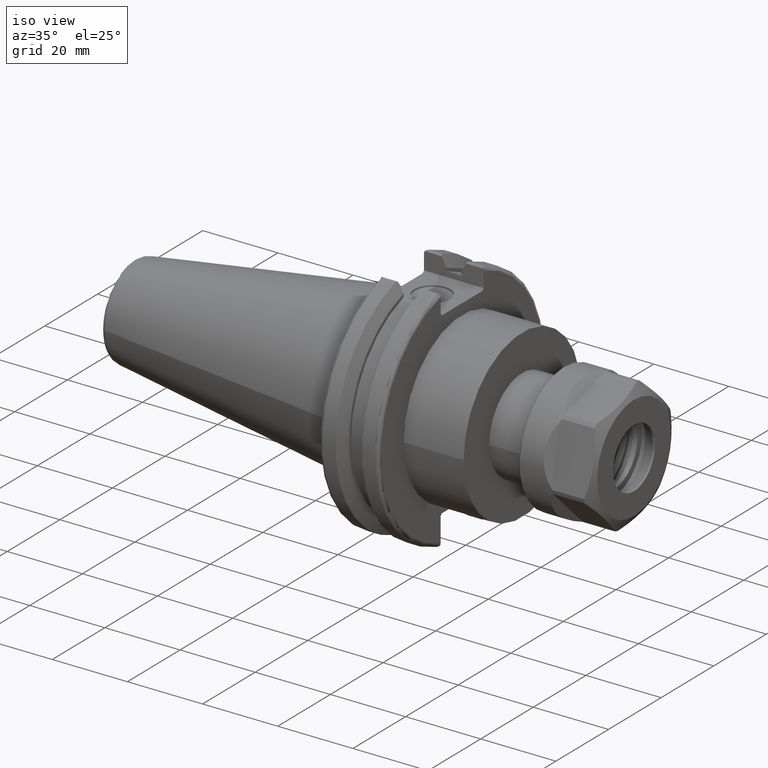
[diagram: clean part render]
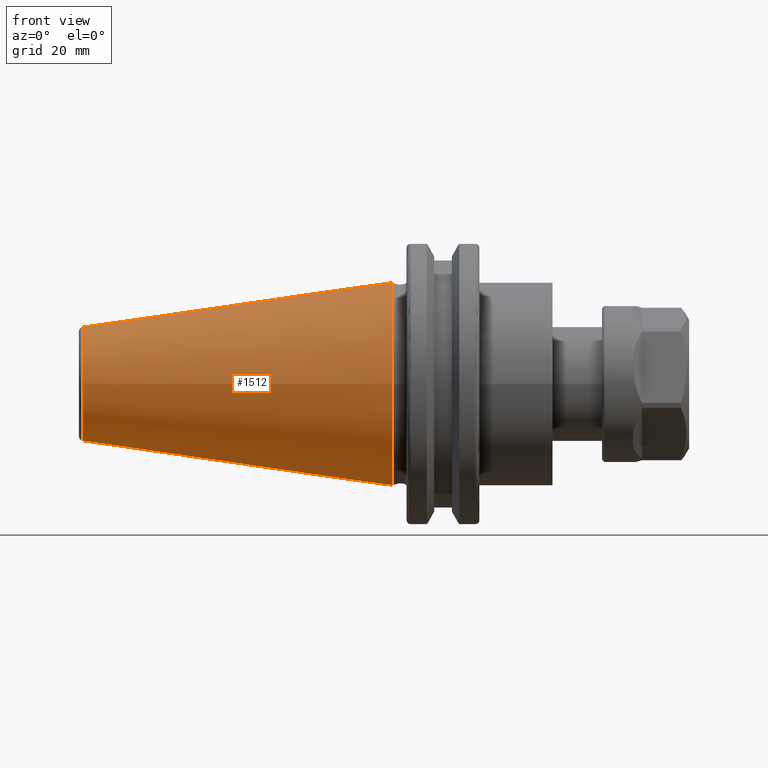
[diagram: tour spotlight — one face highlighted and labeled with its STEP entity id]
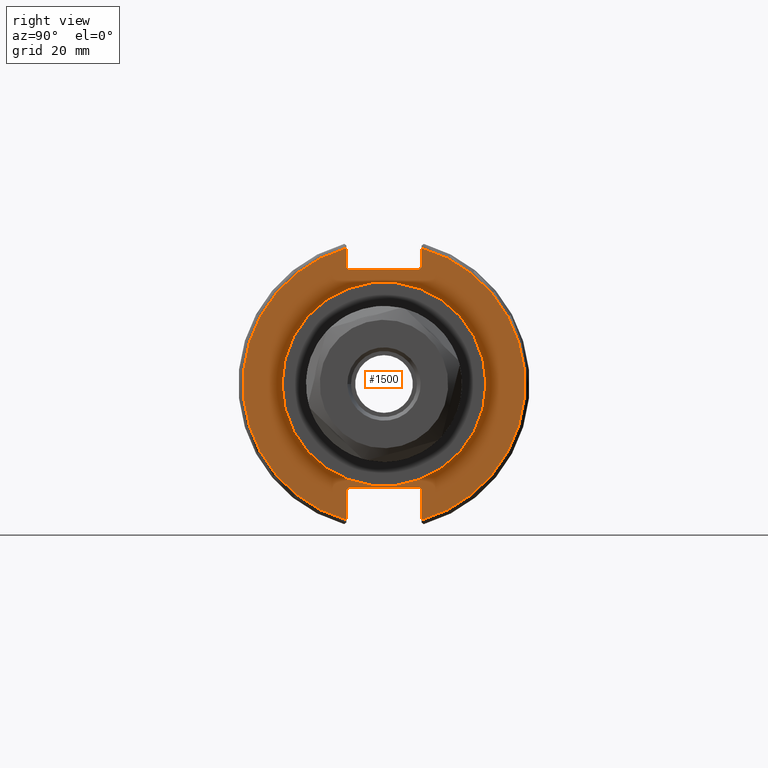
[diagram: tour spotlight — one face highlighted and labeled with its STEP entity id]
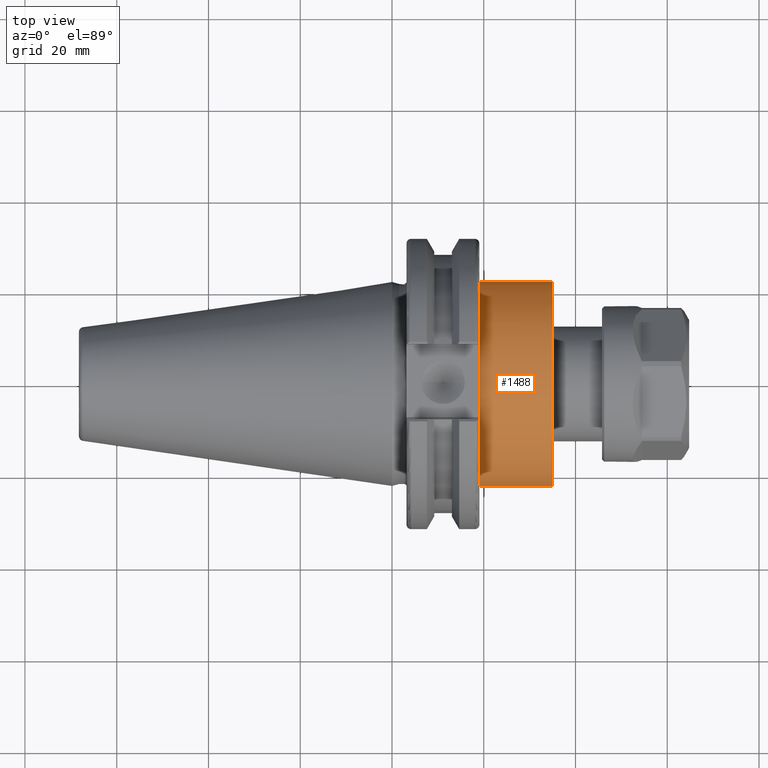
[diagram: tour spotlight — one face highlighted and labeled with its STEP entity id]
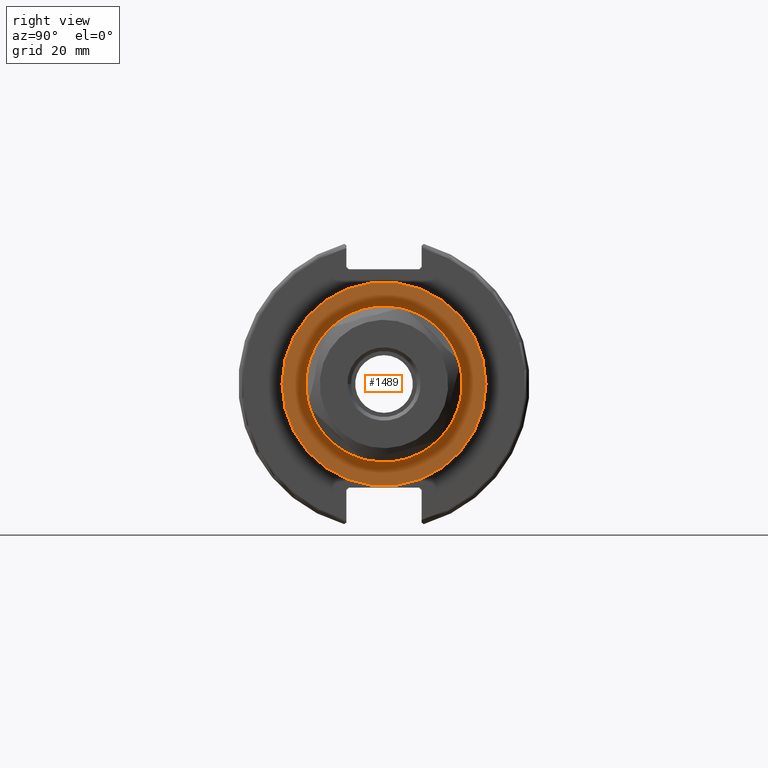
[diagram: tour spotlight — one face highlighted and labeled with its STEP entity id]
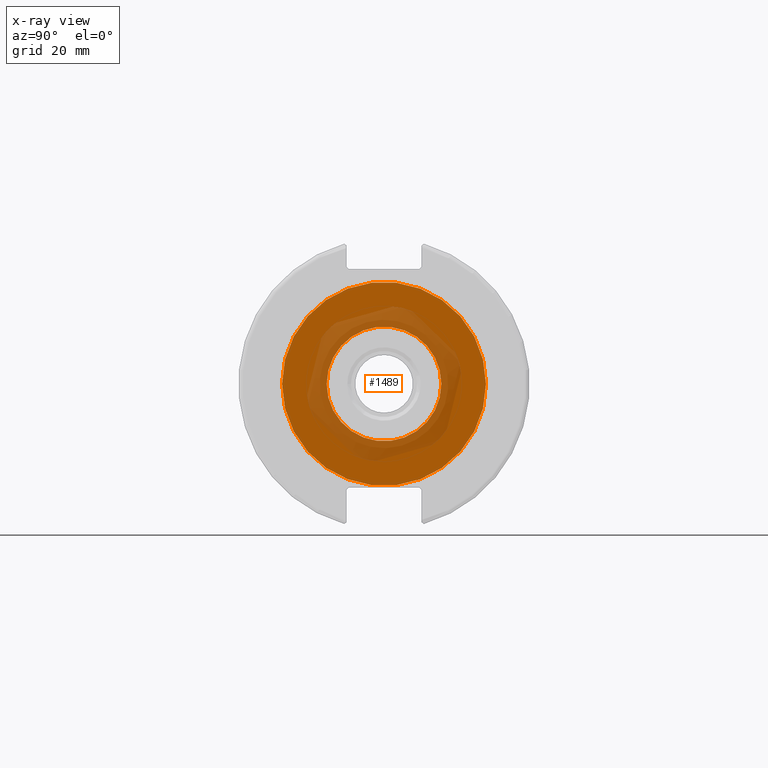
[diagram: x-ray of the same camera — body ghosted, this tour face saturated]
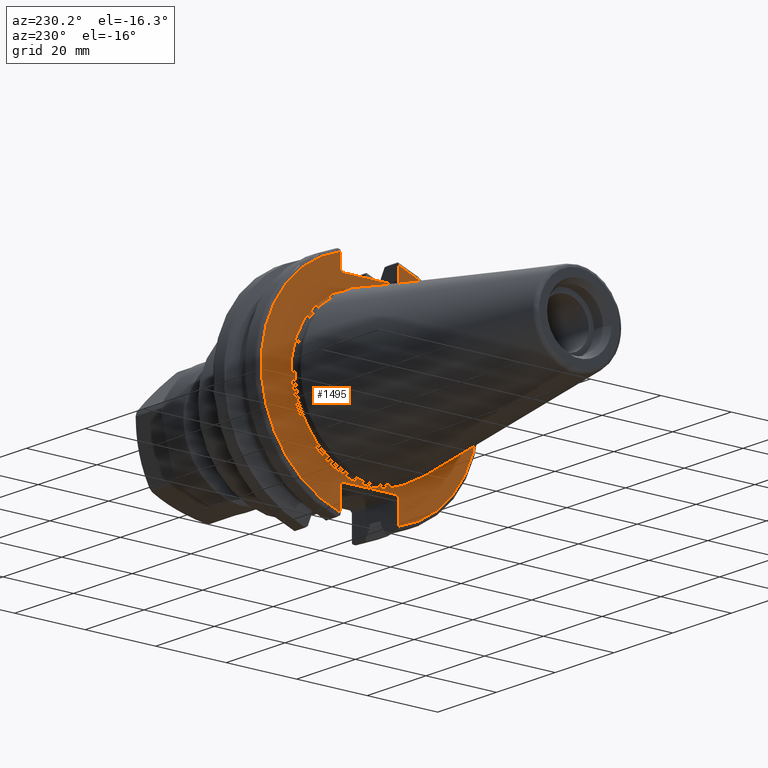
[diagram: tour spotlight — one face highlighted and labeled with its STEP entity id]
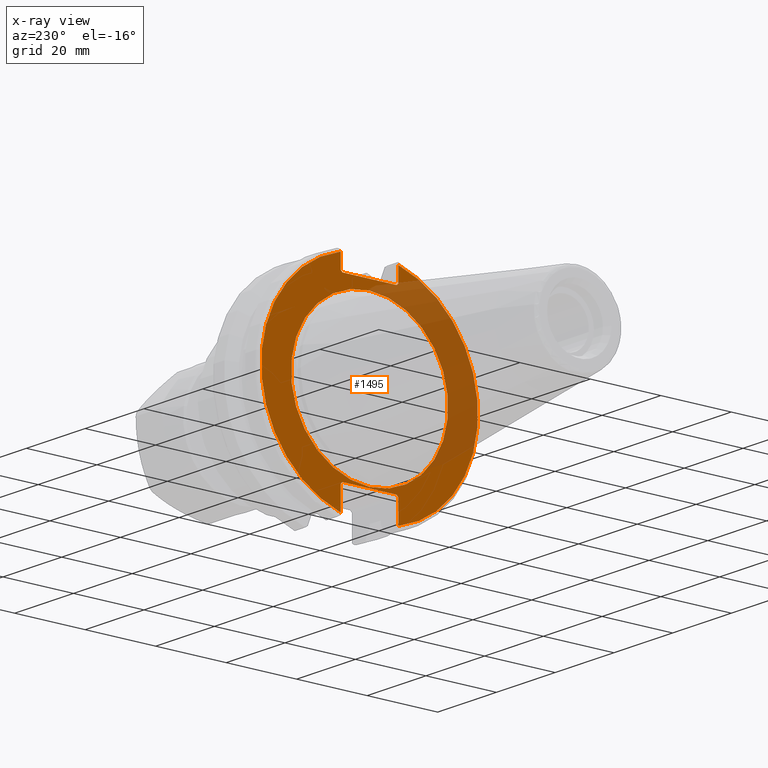
[diagram: x-ray of the same camera — body ghosted, this tour face saturated]
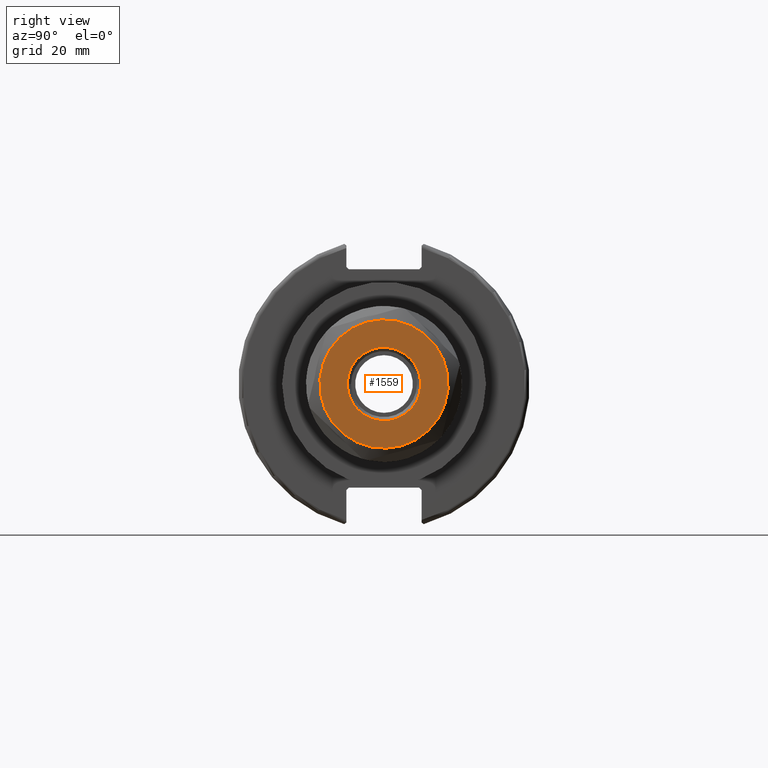
[diagram: tour spotlight — one face highlighted and labeled with its STEP entity id]
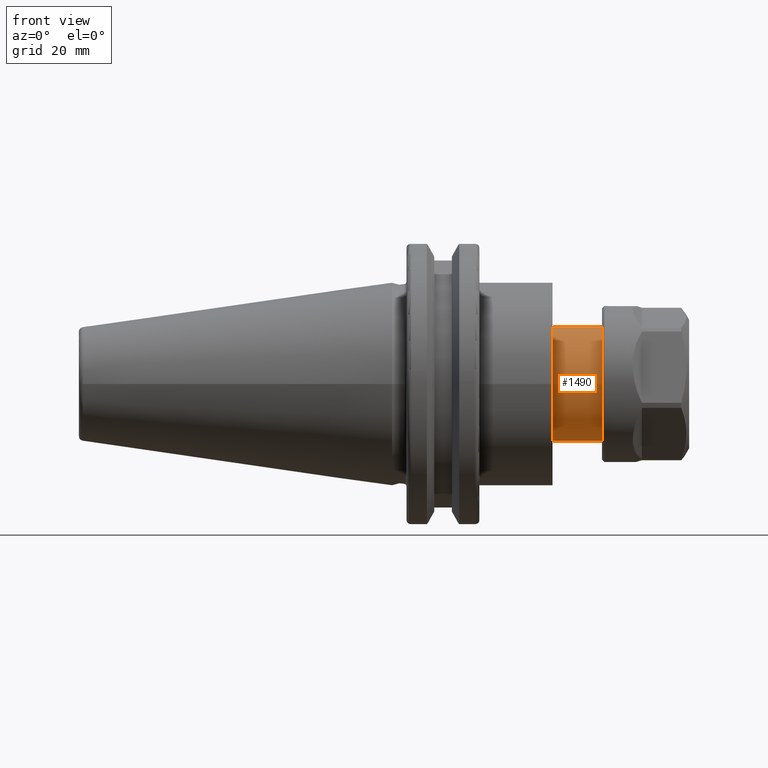
[diagram: tour spotlight — one face highlighted and labeled with its STEP entity id]
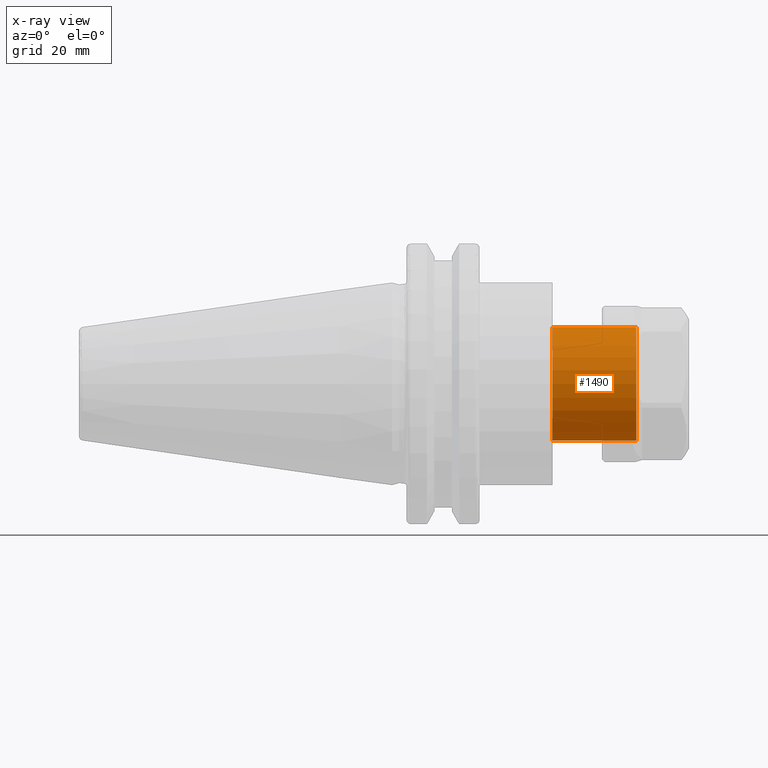
[diagram: x-ray of the same camera — body ghosted, this tour face saturated]
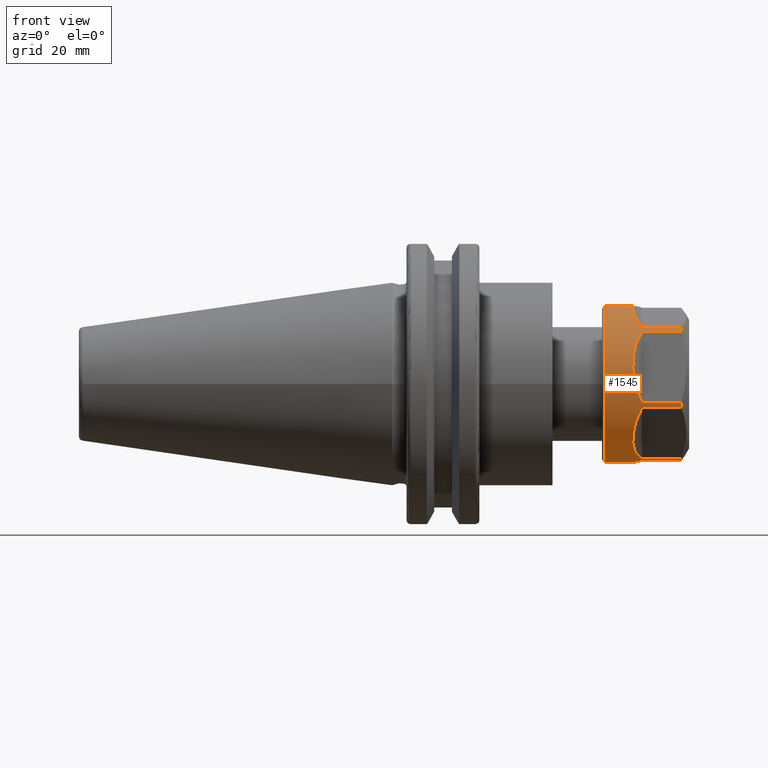
[diagram: tour spotlight — one face highlighted and labeled with its STEP entity id]
A machine part: a face-by-face anatomy tour. The part has 90 B-rep faces; the first image is the clean iso view, then the 8 largest visible faces are spotlighted one at a time (largest first), each with its STEP entity span.

Face 1 — front view, entity #1512. In plain terms, the highlighted conical surface has half-angle 8.297 deg.
Definition (entity closure, byte-faithful):
#180=CONICAL_SURFACE('',#1709,17.2484375,0.144812498238939);
#220=FACE_OUTER_BOUND('',#316,.T.);
#316=EDGE_LOOP('',(#1187,#1188,#1189,#1190,#1191));
#437=LINE('',#2618,#536);
#536=VECTOR('',#2004,17.2484375);
#611=CIRCLE('',#1703,12.3966635780937);
#612=CIRCLE('',#1704,12.3966635780937);
#616=CIRCLE('',#1710,22.225);
#738=VERTEX_POINT('',#2605);
#739=VERTEX_POINT('',#2606);
#742=VERTEX_POINT('',#2616);
#908=EDGE_CURVE('',#738,#739,#611,.T.);
#909=EDGE_CURVE('',#739,#738,#612,.T.);
#913=EDGE_CURVE('',#742,#742,#616,.T.);
#914=EDGE_CURVE('',#742,#739,#437,.T.);
#1187=ORIENTED_EDGE('',*,*,#913,.F.);
#1188=ORIENTED_EDGE('',*,*,#914,.T.);
#1189=ORIENTED_EDGE('',*,*,#908,.F.);
#1190=ORIENTED_EDGE('',*,*,#909,.F.);
#1191=ORIENTED_EDGE('',*,*,#914,.F.);
#1512=ADVANCED_FACE('',(#220),#180,.T.);
#1703=AXIS2_PLACEMENT_3D('',#2607,#1988,#1989);
#1704=AXIS2_PLACEMENT_3D('',#2608,#1990,#1991);
#1709=AXIS2_PLACEMENT_3D('',#2615,#2000,#2001);
#1710=AXIS2_PLACEMENT_3D('',#2617,#2002,#2003);
#1988=DIRECTION('center_axis',(-1.,0.,0.));
#1989=DIRECTION('ref_axis',(0.,-1.,3.06161699786838E-17));
#1990=DIRECTION('center_axis',(-1.,0.,0.));
#1991=DIRECTION('ref_axis',(0.,-1.,3.06161699786838E-17));
#2000=DIRECTION('center_axis',(1.,0.,0.));
#2001=DIRECTION('ref_axis',(0.,1.,0.));
#2002=DIRECTION('center_axis',(1.,0.,0.));
#2003=DIRECTION('ref_axis',(0.,0.,-1.));
#2004=DIRECTION('',(-0.989532981063282,0.144306893071729,1.76724974695192E-17));
#2605=CARTESIAN_POINT('',(-67.3943068930717,-1.5181534371019E-15,12.3966635780937));
#2606=CARTESIAN_POINT('',(-67.3943068930718,-12.3966635780937,-1.5181534371019E-15));
#2607=CARTESIAN_POINT('Origin',(-67.3943068930717,0.,-1.89769179637738E-15));
#2608=CARTESIAN_POINT('Origin',(-67.3943068930717,0.,-1.89769179637738E-15));
#2615=CARTESIAN_POINT('Origin',(-34.125,0.,0.));
#2616=CARTESIAN_POINT('',(0.,-22.225,-2.72177751110499E-15));
#2617=CARTESIAN_POINT('Origin',(0.,0.,0.));
#2618=CARTESIAN_POINT('',(-34.125,-17.2484375,-2.11232437746682E-15));

Face 2 — right view, entity #1500. In plain terms, the highlighted planar face has unit normal (1, 0, 0).
Definition (entity closure, byte-faithful):
#118=FACE_BOUND('',#303,.T.);
#135=PLANE('',#1687);
#208=FACE_OUTER_BOUND('',#302,.T.);
#302=EDGE_LOOP('',(#1109,#1110,#1111,#1112,#1113,#1114,#1115,#1116,#1117,
#1118,#1119,#1120));
#303=EDGE_LOOP('',(#1121));
#407=LINE('',#2407,#506);
#413=LINE('',#2433,#512);
#414=LINE('',#2435,#513);
#415=LINE('',#2437,#514);
#416=LINE('',#2439,#515);
#417=LINE('',#2441,#516);
#418=LINE('',#2445,#517);
#419=LINE('',#2447,#518);
#420=LINE('',#2449,#519);
#421=LINE('',#2450,#520);
#506=VECTOR('',#1926,10.);
#512=VECTOR('',#1934,10.);
#513=VECTOR('',#1935,10.);
#514=VECTOR('',#1936,10.);
#515=VECTOR('',#1937,10.);
#516=VECTOR('',#1938,10.);
#517=VECTOR('',#1941,10.);
#518=VECTOR('',#1942,10.);
#519=VECTOR('',#1943,10.);
#520=VECTOR('',#1944,10.);
#592=CIRCLE('',#1662,22.225);
#604=CIRCLE('',#1683,30.75);
#606=CIRCLE('',#1688,30.75);
#667=VERTEX_POINT('',#2304);
#689=VERTEX_POINT('',#2362);
#690=VERTEX_POINT('',#2369);
#696=VERTEX_POINT('',#2406);
#703=VERTEX_POINT('',#2432);
#704=VERTEX_POINT('',#2434);
#705=VERTEX_POINT('',#2436);
#706=VERTEX_POINT('',#2438);
#707=VERTEX_POINT('',#2440);
#708=VERTEX_POINT('',#2442);
#709=VERTEX_POINT('',#2444);
#710=VERTEX_POINT('',#2446);
#711=VERTEX_POINT('',#2448);
#817=EDGE_CURVE('',#667,#667,#592,.T.);
#844=EDGE_CURVE('',#689,#690,#604,.T.);
#852=EDGE_CURVE('',#696,#690,#407,.T.);
#861=EDGE_CURVE('',#689,#703,#413,.T.);
#862=EDGE_CURVE('',#704,#703,#414,.T.);
#863=EDGE_CURVE('',#704,#705,#415,.T.);
#864=EDGE_CURVE('',#706,#705,#416,.T.);
#865=EDGE_CURVE('',#706,#707,#417,.T.);
#866=EDGE_CURVE('',#708,#707,#606,.T.);
#867=EDGE_CURVE('',#708,#709,#418,.T.);
#868=EDGE_CURVE('',#710,#709,#419,.T.);
#869=EDGE_CURVE('',#710,#711,#420,.T.);
#870=EDGE_CURVE('',#696,#711,#421,.T.);
#1109=ORIENTED_EDGE('',*,*,#844,.F.);
#1110=ORIENTED_EDGE('',*,*,#861,.T.);
#1111=ORIENTED_EDGE('',*,*,#862,.F.);
#1112=ORIENTED_EDGE('',*,*,#863,.T.);
#1113=ORIENTED_EDGE('',*,*,#864,.F.);
#1114=ORIENTED_EDGE('',*,*,#865,.T.);
#1115=ORIENTED_EDGE('',*,*,#866,.F.);
#1116=ORIENTED_EDGE('',*,*,#867,.T.);
#1117=ORIENTED_EDGE('',*,*,#868,.F.);
#1118=ORIENTED_EDGE('',*,*,#869,.T.);
#1119=ORIENTED_EDGE('',*,*,#870,.F.);
#1120=ORIENTED_EDGE('',*,*,#852,.T.);
#1121=ORIENTED_EDGE('',*,*,#817,.T.);
#1500=ADVANCED_FACE('',(#208,#118),#135,.T.);
#1662=AXIS2_PLACEMENT_3D('',#2306,#1860,#1861);
#1683=AXIS2_PLACEMENT_3D('',#2370,#1916,#1917);
#1687=AXIS2_PLACEMENT_3D('',#2431,#1932,#1933);
#1688=AXIS2_PLACEMENT_3D('',#2443,#1939,#1940);
#1860=DIRECTION('center_axis',(-1.,0.,0.));
#1861=DIRECTION('ref_axis',(0.,1.,0.));
#1916=DIRECTION('center_axis',(-1.,0.,0.));
#1917=DIRECTION('ref_axis',(0.,1.,-6.12323399573677E-17));
#1926=DIRECTION('',(0.,0.,-1.));
#1932=DIRECTION('center_axis',(1.,0.,0.));
#1933=DIRECTION('ref_axis',(0.,0.,-1.));
#1934=DIRECTION('',(0.,0.,-1.));
#1935=DIRECTION('',(0.,0.707106781186549,0.707106781186546));
#1936=DIRECTION('',(0.,-1.,0.));
#1937=DIRECTION('',(0.,0.70710678118655,-0.707106781186545));
#1938=DIRECTION('',(0.,0.,1.));
#1939=DIRECTION('center_axis',(-1.,0.,0.));
#1940=DIRECTION('ref_axis',(0.,-1.,1.60812264967664E-16));
#1941=DIRECTION('',(0.,0.,1.));
#1942=DIRECTION('',(0.,-0.707106781186549,-0.707106781186546));
#1943=DIRECTION('',(0.,1.,0.));
#1944=DIRECTION('',(0.,-0.707106781186549,0.707106781186546));
#2304=CARTESIAN_POINT('',(19.05,-22.225,-2.72177751110499E-15));
#2306=CARTESIAN_POINT('Origin',(19.05,0.,0.));
#2362=CARTESIAN_POINT('',(19.05,8.19,29.6392712461019));
#2369=CARTESIAN_POINT('',(19.05,8.19,-29.6392712461019));
#2370=CARTESIAN_POINT('Origin',(19.05,0.,0.));
#2406=CARTESIAN_POINT('',(19.05,8.19,-23.1));
#2407=CARTESIAN_POINT('',(19.05,8.19,-11.3));
#2431=CARTESIAN_POINT('Origin',(19.05,0.,0.));
#2432=CARTESIAN_POINT('',(19.05,8.19,25.5));
#2433=CARTESIAN_POINT('',(19.05,8.19,12.5));
#2434=CARTESIAN_POINT('',(19.05,7.69,25.));
#2435=CARTESIAN_POINT('',(19.05,-0.35750000000001,16.9525));
#2436=CARTESIAN_POINT('',(19.05,-7.69,25.));
#2437=CARTESIAN_POINT('',(19.05,0.,25.));
#2438=CARTESIAN_POINT('',(19.05,-8.19,25.5));
#2439=CARTESIAN_POINT('',(19.05,0.357500000000014,16.9525));
#2440=CARTESIAN_POINT('',(19.05,-8.19,29.6392712461019));
#2441=CARTESIAN_POINT('',(19.05,-8.19,12.5));
#2442=CARTESIAN_POINT('',(19.05,-8.19,-29.6392712461019));
#2443=CARTESIAN_POINT('Origin',(19.05,0.,0.));
#2444=CARTESIAN_POINT('',(19.05,-8.19,-23.1));
#2445=CARTESIAN_POINT('',(19.05,-8.19,-11.3));
#2446=CARTESIAN_POINT('',(19.05,-7.69,-22.6));
#2447=CARTESIAN_POINT('',(19.05,-0.242499999999991,-15.1525));
#2448=CARTESIAN_POINT('',(19.05,7.69,-22.6));
#2449=CARTESIAN_POINT('',(19.05,-2.77555756156289E-16,-22.6));
#2450=CARTESIAN_POINT('',(19.05,0.242499999999989,-15.1525));

Face 3 — top view, entity #1488. In plain terms, the highlighted cylindrical surface (bore or boss wall) has radius 22.225 mm, axis along (1, 0, 0).
Definition (entity closure, byte-faithful):
#196=FACE_OUTER_BOUND('',#287,.T.);
#287=EDGE_LOOP('',(#1044,#1045,#1046,#1047));
#390=LINE('',#2305,#489);
#489=VECTOR('',#1859,22.225);
#591=CIRCLE('',#1661,22.225);
#592=CIRCLE('',#1662,22.225);
#666=VERTEX_POINT('',#2302);
#667=VERTEX_POINT('',#2304);
#815=EDGE_CURVE('',#666,#666,#591,.T.);
#816=EDGE_CURVE('',#666,#667,#390,.T.);
#817=EDGE_CURVE('',#667,#667,#592,.T.);
#1044=ORIENTED_EDGE('',*,*,#815,.F.);
#1045=ORIENTED_EDGE('',*,*,#816,.T.);
#1046=ORIENTED_EDGE('',*,*,#817,.F.);
#1047=ORIENTED_EDGE('',*,*,#816,.F.);
#1465=CYLINDRICAL_SURFACE('',#1660,22.225);
#1488=ADVANCED_FACE('',(#196),#1465,.T.);
#1660=AXIS2_PLACEMENT_3D('',#2301,#1855,#1856);
#1661=AXIS2_PLACEMENT_3D('',#2303,#1857,#1858);
#1662=AXIS2_PLACEMENT_3D('',#2306,#1860,#1861);
#1855=DIRECTION('center_axis',(1.,0.,0.));
#1856=DIRECTION('ref_axis',(0.,1.,0.));
#1857=DIRECTION('center_axis',(1.,0.,0.));
#1858=DIRECTION('ref_axis',(0.,0.,-1.));
#1859=DIRECTION('',(-1.,0.,0.));
#1860=DIRECTION('center_axis',(-1.,0.,0.));
#1861=DIRECTION('ref_axis',(0.,1.,0.));
#2301=CARTESIAN_POINT('Origin',(27.025,0.,0.));
#2302=CARTESIAN_POINT('',(35.,-22.225,-2.72177751110499E-15));
#2303=CARTESIAN_POINT('Origin',(35.,0.,0.));
#2304=CARTESIAN_POINT('',(19.05,-22.225,-2.72177751110499E-15));
#2305=CARTESIAN_POINT('',(27.025,-22.225,-2.72177751110499E-15));
#2306=CARTESIAN_POINT('Origin',(19.05,0.,0.));

Face 4 — right view, entity #1489. An x-ray twin of the same camera follows (body ghosted, this face saturated) — the face is partly hidden behind the body. In plain terms, the highlighted planar face has unit normal (1, 0, 0).
Definition (entity closure, byte-faithful):
#115=FACE_BOUND('',#289,.T.);
#130=PLANE('',#1663);
#197=FACE_OUTER_BOUND('',#288,.T.);
#288=EDGE_LOOP('',(#1048));
#289=EDGE_LOOP('',(#1049));
#591=CIRCLE('',#1661,22.225);
#593=CIRCLE('',#1664,12.5);
#666=VERTEX_POINT('',#2302);
#668=VERTEX_POINT('',#2308);
#815=EDGE_CURVE('',#666,#666,#591,.T.);
#818=EDGE_CURVE('',#668,#668,#593,.T.);
#1048=ORIENTED_EDGE('',*,*,#815,.T.);
#1049=ORIENTED_EDGE('',*,*,#818,.F.);
#1489=ADVANCED_FACE('',(#197,#115),#130,.T.);
#1661=AXIS2_PLACEMENT_3D('',#2303,#1857,#1858);
#1663=AXIS2_PLACEMENT_3D('',#2307,#1862,#1863);
#1664=AXIS2_PLACEMENT_3D('',#2309,#1864,#1865);
#1857=DIRECTION('center_axis',(1.,0.,0.));
#1858=DIRECTION('ref_axis',(0.,0.,-1.));
#1862=DIRECTION('center_axis',(1.,0.,0.));
#1863=DIRECTION('ref_axis',(0.,0.,-1.));
#1864=DIRECTION('center_axis',(1.,0.,0.));
#1865=DIRECTION('ref_axis',(0.,0.,-1.));
#2302=CARTESIAN_POINT('',(35.,-22.225,-2.72177751110499E-15));
#2303=CARTESIAN_POINT('Origin',(35.,0.,0.));
#2307=CARTESIAN_POINT('Origin',(35.,12.5,0.));
#2308=CARTESIAN_POINT('',(35.,-12.5,-1.53080849893419E-15));
#2309=CARTESIAN_POINT('Origin',(35.,0.,0.));

Face 5 — auxiliary view, entity #1495. An x-ray twin of the same camera follows (body ghosted, this face saturated) — the face is partly hidden behind the body. In plain terms, the highlighted planar face has unit normal (-1, 0, 0).
Definition (entity closure, byte-faithful):
#117=FACE_BOUND('',#297,.T.);
#132=PLANE('',#1677);
#203=FACE_OUTER_BOUND('',#296,.T.);
#296=EDGE_LOOP('',(#1069,#1070,#1071,#1072,#1073,#1074,#1075,#1076,#1077,
#1078,#1079,#1080));
#297=EDGE_LOOP('',(#1081));
#394=LINE('',#2336,#493);
#395=LINE('',#2338,#494);
#396=LINE('',#2340,#495);
#397=LINE('',#2342,#496);
#398=LINE('',#2344,#497);
#399=LINE('',#2348,#498);
#400=LINE('',#2350,#499);
#401=LINE('',#2352,#500);
#402=LINE('',#2354,#501);
#403=LINE('',#2355,#502);
#493=VECTOR('',#1897,10.);
#494=VECTOR('',#1898,10.);
#495=VECTOR('',#1899,10.);
#496=VECTOR('',#1900,10.);
#497=VECTOR('',#1901,10.);
#498=VECTOR('',#1904,10.);
#499=VECTOR('',#1905,10.);
#500=VECTOR('',#1906,10.);
#501=VECTOR('',#1907,10.);
#502=VECTOR('',#1908,10.);
#599=CIRCLE('',#1675,22.3);
#601=CIRCLE('',#1678,30.75);
#602=CIRCLE('',#1679,30.75);
#674=VERTEX_POINT('',#2327);
#675=VERTEX_POINT('',#2332);
#676=VERTEX_POINT('',#2333);
#677=VERTEX_POINT('',#2335);
#678=VERTEX_POINT('',#2337);
#679=VERTEX_POINT('',#2339);
#680=VERTEX_POINT('',#2341);
#681=VERTEX_POINT('',#2343);
#682=VERTEX_POINT('',#2345);
#683=VERTEX_POINT('',#2347);
#684=VERTEX_POINT('',#2349);
#685=VERTEX_POINT('',#2351);
#686=VERTEX_POINT('',#2353);
#827=EDGE_CURVE('',#674,#674,#599,.T.);
#829=EDGE_CURVE('',#675,#676,#601,.T.);
#830=EDGE_CURVE('',#675,#677,#394,.T.);
#831=EDGE_CURVE('',#678,#677,#395,.T.);
#832=EDGE_CURVE('',#678,#679,#396,.T.);
#833=EDGE_CURVE('',#680,#679,#397,.T.);
#834=EDGE_CURVE('',#680,#681,#398,.T.);
#835=EDGE_CURVE('',#682,#681,#602,.T.);
#836=EDGE_CURVE('',#682,#683,#399,.T.);
#837=EDGE_CURVE('',#684,#683,#400,.T.);
#838=EDGE_CURVE('',#684,#685,#401,.T.);
#839=EDGE_CURVE('',#686,#685,#402,.T.);
#840=EDGE_CURVE('',#686,#676,#403,.T.);
#1069=ORIENTED_EDGE('',*,*,#829,.F.);
#1070=ORIENTED_EDGE('',*,*,#830,.T.);
#1071=ORIENTED_EDGE('',*,*,#831,.F.);
#1072=ORIENTED_EDGE('',*,*,#832,.T.);
#1073=ORIENTED_EDGE('',*,*,#833,.F.);
#1074=ORIENTED_EDGE('',*,*,#834,.T.);
#1075=ORIENTED_EDGE('',*,*,#835,.F.);
#1076=ORIENTED_EDGE('',*,*,#836,.T.);
#1077=ORIENTED_EDGE('',*,*,#837,.F.);
#1078=ORIENTED_EDGE('',*,*,#838,.T.);
#1079=ORIENTED_EDGE('',*,*,#839,.F.);
#1080=ORIENTED_EDGE('',*,*,#840,.T.);
#1081=ORIENTED_EDGE('',*,*,#827,.F.);
#1495=ADVANCED_FACE('',(#203,#117),#132,.T.);
#1675=AXIS2_PLACEMENT_3D('',#2329,#1889,#1890);
#1677=AXIS2_PLACEMENT_3D('',#2331,#1893,#1894);
#1678=AXIS2_PLACEMENT_3D('',#2334,#1895,#1896);
#1679=AXIS2_PLACEMENT_3D('',#2346,#1902,#1903);
#1889=DIRECTION('center_axis',(-1.,0.,0.));
#1890=DIRECTION('ref_axis',(0.,-1.,1.83697019872103E-16));
#1893=DIRECTION('center_axis',(-1.,0.,0.));
#1894=DIRECTION('ref_axis',(0.,0.,1.));
#1895=DIRECTION('center_axis',(1.,0.,0.));
#1896=DIRECTION('ref_axis',(0.,-1.,1.60812264967664E-16));
#1897=DIRECTION('',(0.,0.,-1.));
#1898=DIRECTION('',(0.,-0.70710678118655,0.707106781186545));
#1899=DIRECTION('',(0.,1.,0.));
#1900=DIRECTION('',(0.,-0.707106781186549,-0.707106781186546));
#1901=DIRECTION('',(0.,0.,1.));
#1902=DIRECTION('center_axis',(1.,0.,0.));
#1903=DIRECTION('ref_axis',(0.,1.,1.60812264967664E-16));
#1904=DIRECTION('',(0.,0.,1.));
#1905=DIRECTION('',(0.,0.707106781186549,-0.707106781186546));
#1906=DIRECTION('',(0.,-1.,0.));
#1907=DIRECTION('',(0.,0.707106781186549,0.707106781186546));
#1908=DIRECTION('',(0.,0.,-1.));
#2327=CARTESIAN_POINT('',(3.175,-2.7309623620986E-15,22.3));
#2329=CARTESIAN_POINT('Origin',(3.175,0.,0.));
#2331=CARTESIAN_POINT('Origin',(3.175,31.75,0.));
#2332=CARTESIAN_POINT('',(3.175,-8.18999999999999,29.6392712461019));
#2333=CARTESIAN_POINT('',(3.175,-8.19,-29.6392712461019));
#2334=CARTESIAN_POINT('Origin',(3.175,0.,0.));
#2335=CARTESIAN_POINT('',(3.175,-8.18999999999999,25.5));
#2336=CARTESIAN_POINT('',(3.175,-8.18999999999999,12.5));
#2337=CARTESIAN_POINT('',(3.175,-7.68999999999999,25.));
#2338=CARTESIAN_POINT('',(3.175,8.29500000000007,9.01500000000004));
#2339=CARTESIAN_POINT('',(3.175,7.69,25.));
#2340=CARTESIAN_POINT('',(3.175,15.875,25.));
#2341=CARTESIAN_POINT('',(3.175,8.19,25.5));
#2342=CARTESIAN_POINT('',(3.175,7.58000000000002,24.89));
#2343=CARTESIAN_POINT('',(3.175,8.19,29.6392712461019));
#2344=CARTESIAN_POINT('',(3.175,8.19,12.5));
#2345=CARTESIAN_POINT('',(3.175,8.18999999999999,-29.6392712461019));
#2346=CARTESIAN_POINT('Origin',(3.175,0.,0.));
#2347=CARTESIAN_POINT('',(3.175,8.18999999999999,-23.1));
#2348=CARTESIAN_POINT('',(3.175,8.18999999999999,-11.3));
#2349=CARTESIAN_POINT('',(3.175,7.69,-22.6));
#2350=CARTESIAN_POINT('',(3.175,8.18000000000002,-23.09));
#2351=CARTESIAN_POINT('',(3.175,-7.69,-22.6));
#2352=CARTESIAN_POINT('',(3.175,15.875,-22.6));
#2353=CARTESIAN_POINT('',(3.175,-8.19,-23.1));
#2354=CARTESIAN_POINT('',(3.175,7.69500000000004,-7.21500000000002));
#2355=CARTESIAN_POINT('',(3.175,-8.19,-11.3));

Face 6 — right view, entity #1559. In plain terms, the highlighted planar face has unit normal (1, 0, 0).
Definition (entity closure, byte-faithful):
#123=FACE_BOUND('',#367,.T.);
#171=PLANE('',#1790);
#267=FACE_OUTER_BOUND('',#366,.T.);
#366=EDGE_LOOP('',(#1414));
#367=EDGE_LOOP('',(#1415));
#641=CIRCLE('',#1779,14.);
#642=CIRCLE('',#1791,8.);
#787=VERTEX_POINT('',#2798);
#788=VERTEX_POINT('',#2823);
#992=EDGE_CURVE('',#787,#787,#641,.T.);
#1000=EDGE_CURVE('',#788,#788,#642,.T.);
#1414=ORIENTED_EDGE('',*,*,#992,.T.);
#1415=ORIENTED_EDGE('',*,*,#1000,.T.);
#1559=ADVANCED_FACE('',(#267,#123),#171,.T.);
#1779=AXIS2_PLACEMENT_3D('',#2800,#2176,#2177);
#1790=AXIS2_PLACEMENT_3D('',#2822,#2203,#2204);
#1791=AXIS2_PLACEMENT_3D('',#2824,#2205,#2206);
#2176=DIRECTION('center_axis',(1.,0.,0.));
#2177=DIRECTION('ref_axis',(0.,0.,-1.));
#2203=DIRECTION('center_axis',(1.,0.,0.));
#2204=DIRECTION('ref_axis',(0.,0.,-1.));
#2205=DIRECTION('center_axis',(-1.,0.,0.));
#2206=DIRECTION('ref_axis',(0.,-1.,0.));
#2798=CARTESIAN_POINT('',(9.499999999999,1.71450551880622E-15,13.9999999999994));
#2800=CARTESIAN_POINT('Origin',(9.5,0.,0.));
#2822=CARTESIAN_POINT('Origin',(9.5,0.,0.));
#2823=CARTESIAN_POINT('',(9.5,8.,-9.79717439317883E-16));
#2824=CARTESIAN_POINT('Origin',(9.5,0.,0.));

Face 7 — front view, entity #1490. An x-ray twin of the same camera follows (body ghosted, this face saturated) — the face is partly hidden behind the body. In plain terms, the highlighted cylindrical surface (bore or boss wall) has radius 12.5 mm, axis along (1, 0, 0).
Definition (entity closure, byte-faithful):
#198=FACE_OUTER_BOUND('',#290,.T.);
#290=EDGE_LOOP('',(#1050,#1051,#1052,#1053));
#391=LINE('',#2313,#490);
#490=VECTOR('',#1870,12.5);
#593=CIRCLE('',#1664,12.5);
#594=CIRCLE('',#1666,12.5);
#668=VERTEX_POINT('',#2308);
#669=VERTEX_POINT('',#2311);
#818=EDGE_CURVE('',#668,#668,#593,.T.);
#819=EDGE_CURVE('',#669,#669,#594,.T.);
#820=EDGE_CURVE('',#669,#668,#391,.T.);
#1050=ORIENTED_EDGE('',*,*,#819,.F.);
#1051=ORIENTED_EDGE('',*,*,#820,.T.);
#1052=ORIENTED_EDGE('',*,*,#818,.T.);
#1053=ORIENTED_EDGE('',*,*,#820,.F.);
#1466=CYLINDRICAL_SURFACE('',#1665,12.5);
#1490=ADVANCED_FACE('',(#198),#1466,.T.);
#1664=AXIS2_PLACEMENT_3D('',#2309,#1864,#1865);
#1665=AXIS2_PLACEMENT_3D('',#2310,#1866,#1867);
#1666=AXIS2_PLACEMENT_3D('',#2312,#1868,#1869);
#1864=DIRECTION('center_axis',(1.,0.,0.));
#1865=DIRECTION('ref_axis',(0.,0.,-1.));
#1866=DIRECTION('center_axis',(1.,0.,0.));
#1867=DIRECTION('ref_axis',(0.,1.,0.));
#1868=DIRECTION('center_axis',(1.,0.,0.));
#1869=DIRECTION('ref_axis',(0.,0.,-1.));
#1870=DIRECTION('',(-1.,0.,0.));
#2308=CARTESIAN_POINT('',(35.,-12.5,-1.53080849893419E-15));
#2309=CARTESIAN_POINT('Origin',(35.,0.,0.));
#2310=CARTESIAN_POINT('Origin',(44.135,0.,0.));
#2311=CARTESIAN_POINT('',(53.27,-12.5,-1.53080849893419E-15));
#2312=CARTESIAN_POINT('Origin',(53.27,0.,0.));
#2313=CARTESIAN_POINT('',(44.135,-12.5,-1.53080849893419E-15));

Face 8 — front view, entity #1545. In plain terms, the highlighted cylindrical surface (bore or boss wall) has radius 17 mm, axis along (1, 0, 0).
Definition (entity closure, byte-faithful):
#23=ELLIPSE('',#1763,24.0416305603426,17.);
#24=ELLIPSE('',#1765,24.0416305603437,17.);
#25=ELLIPSE('',#1767,24.0416305603437,17.);
#26=ELLIPSE('',#1769,24.0416305603426,17.);
#27=ELLIPSE('',#1770,24.0416305603426,17.);
#28=ELLIPSE('',#1772,24.0416305603437,17.);
#29=ELLIPSE('',#1774,24.0416305603437,17.);
#253=FACE_OUTER_BOUND('',#352,.T.);
#352=EDGE_LOOP('',(#1332,#1333,#1334,#1335,#1336,#1337,#1338,#1339,#1340,
#1341,#1342,#1343,#1344,#1345,#1346,#1347,#1348,#1349,#1350,#1351,#1352,
#1353,#1354,#1355,#1356,#1357,#1358,#1359));
#458=LINE('',#2731,#557);
#459=LINE('',#2735,#558);
#460=LINE('',#2739,#559);
#461=LINE('',#2743,#560);
#462=LINE('',#2747,#561);
#463=LINE('',#2751,#562);
#464=LINE('',#2754,#563);
#465=LINE('',#2758,#564);
#466=LINE('',#2762,#565);
#467=LINE('',#2766,#566);
#468=LINE('',#2770,#567);
#469=LINE('',#2774,#568);
#470=LINE('',#2777,#569);
#557=VECTOR('',#2131,8.567949192431);
#558=VECTOR('',#2134,8.567949192431);
#559=VECTOR('',#2137,8.567949192431);
#560=VECTOR('',#2140,8.567949192431);
#561=VECTOR('',#2143,8.567949192431);
#562=VECTOR('',#2146,8.567949192431);
#563=VECTOR('',#2149,17.);
#564=VECTOR('',#2152,8.567949192431);
#565=VECTOR('',#2155,8.567949192431);
#566=VECTOR('',#2158,8.567949192431);
#567=VECTOR('',#2161,8.567949192431);
#568=VECTOR('',#2164,8.567949192431);
#569=VECTOR('',#2167,8.567949192431);
#634=CIRCLE('',#1761,17.);
#635=CIRCLE('',#1764,17.);
#636=CIRCLE('',#1766,17.);
#637=CIRCLE('',#1768,17.);
#638=CIRCLE('',#1771,17.);
#639=CIRCLE('',#1773,17.);
#640=CIRCLE('',#1775,17.);
#760=VERTEX_POINT('',#2723);
#761=VERTEX_POINT('',#2727);
#762=VERTEX_POINT('',#2728);
#763=VERTEX_POINT('',#2730);
#764=VERTEX_POINT('',#2732);
#765=VERTEX_POINT('',#2734);
#766=VERTEX_POINT('',#2736);
#767=VERTEX_POINT('',#2738);
#768=VERTEX_POINT('',#2740);
#769=VERTEX_POINT('',#2742);
#770=VERTEX_POINT('',#2744);
#771=VERTEX_POINT('',#2746);
#772=VERTEX_POINT('',#2748);
#773=VERTEX_POINT('',#2750);
#774=VERTEX_POINT('',#2752);
#775=VERTEX_POINT('',#2755);
#776=VERTEX_POINT('',#2757);
#777=VERTEX_POINT('',#2759);
#778=VERTEX_POINT('',#2761);
#779=VERTEX_POINT('',#2763);
#780=VERTEX_POINT('',#2765);
#781=VERTEX_POINT('',#2767);
#782=VERTEX_POINT('',#2769);
#783=VERTEX_POINT('',#2771);
#784=VERTEX_POINT('',#2773);
#785=VERTEX_POINT('',#2775);
#957=EDGE_CURVE('',#760,#760,#634,.T.);
#959=EDGE_CURVE('',#761,#762,#23,.T.);
#960=EDGE_CURVE('',#761,#763,#458,.T.);
#961=EDGE_CURVE('',#764,#763,#635,.T.);
#962=EDGE_CURVE('',#765,#764,#459,.T.);
#963=EDGE_CURVE('',#766,#765,#24,.T.);
#964=EDGE_CURVE('',#766,#767,#460,.T.);
#965=EDGE_CURVE('',#768,#767,#636,.T.);
#966=EDGE_CURVE('',#769,#768,#461,.T.);
#967=EDGE_CURVE('',#770,#769,#25,.T.);
#968=EDGE_CURVE('',#770,#771,#462,.T.);
#969=EDGE_CURVE('',#772,#771,#637,.T.);
#970=EDGE_CURVE('',#773,#772,#463,.T.);
#971=EDGE_CURVE('',#774,#773,#26,.T.);
#972=EDGE_CURVE('',#774,#760,#464,.T.);
#973=EDGE_CURVE('',#775,#774,#27,.T.);
#974=EDGE_CURVE('',#775,#776,#465,.T.);
#975=EDGE_CURVE('',#777,#776,#638,.T.);
#976=EDGE_CURVE('',#778,#777,#466,.T.);
#977=EDGE_CURVE('',#779,#778,#28,.T.);
#978=EDGE_CURVE('',#779,#780,#467,.T.);
#979=EDGE_CURVE('',#781,#780,#639,.T.);
#980=EDGE_CURVE('',#782,#781,#468,.T.);
#981=EDGE_CURVE('',#783,#782,#29,.T.);
#982=EDGE_CURVE('',#783,#784,#469,.T.);
#983=EDGE_CURVE('',#785,#784,#640,.T.);
#984=EDGE_CURVE('',#762,#785,#470,.T.);
#1332=ORIENTED_EDGE('',*,*,#959,.F.);
#1333=ORIENTED_EDGE('',*,*,#960,.T.);
#1334=ORIENTED_EDGE('',*,*,#961,.F.);
#1335=ORIENTED_EDGE('',*,*,#962,.F.);
#1336=ORIENTED_EDGE('',*,*,#963,.F.);
#1337=ORIENTED_EDGE('',*,*,#964,.T.);
#1338=ORIENTED_EDGE('',*,*,#965,.F.);
#1339=ORIENTED_EDGE('',*,*,#966,.F.);
#1340=ORIENTED_EDGE('',*,*,#967,.F.);
#1341=ORIENTED_EDGE('',*,*,#968,.T.);
#1342=ORIENTED_EDGE('',*,*,#969,.F.);
#1343=ORIENTED_EDGE('',*,*,#970,.F.);
#1344=ORIENTED_EDGE('',*,*,#971,.F.);
#1345=ORIENTED_EDGE('',*,*,#972,.T.);
#1346=ORIENTED_EDGE('',*,*,#957,.F.);
#1347=ORIENTED_EDGE('',*,*,#972,.F.);
#1348=ORIENTED_EDGE('',*,*,#973,.F.);
#1349=ORIENTED_EDGE('',*,*,#974,.T.);
#1350=ORIENTED_EDGE('',*,*,#975,.F.);
#1351=ORIENTED_EDGE('',*,*,#976,.F.);
#1352=ORIENTED_EDGE('',*,*,#977,.F.);
#1353=ORIENTED_EDGE('',*,*,#978,.T.);
#1354=ORIENTED_EDGE('',*,*,#979,.F.);
#1355=ORIENTED_EDGE('',*,*,#980,.F.);
#1356=ORIENTED_EDGE('',*,*,#981,.F.);
#1357=ORIENTED_EDGE('',*,*,#982,.T.);
#1358=ORIENTED_EDGE('',*,*,#983,.F.);
#1359=ORIENTED_EDGE('',*,*,#984,.F.);
#1476=CYLINDRICAL_SURFACE('',#1762,17.);
#1545=ADVANCED_FACE('',(#253),#1476,.T.);
#1761=AXIS2_PLACEMENT_3D('',#2724,#2124,#2125);
#1762=AXIS2_PLACEMENT_3D('',#2726,#2127,#2128);
#1763=AXIS2_PLACEMENT_3D('',#2729,#2129,#2130);
#1764=AXIS2_PLACEMENT_3D('',#2733,#2132,#2133);
#1765=AXIS2_PLACEMENT_3D('',#2737,#2135,#2136);
#1766=AXIS2_PLACEMENT_3D('',#2741,#2138,#2139);
#1767=AXIS2_PLACEMENT_3D('',#2745,#2141,#2142);
#1768=AXIS2_PLACEMENT_3D('',#2749,#2144,#2145);
#1769=AXIS2_PLACEMENT_3D('',#2753,#2147,#2148);
#1770=AXIS2_PLACEMENT_3D('',#2756,#2150,#2151);
#1771=AXIS2_PLACEMENT_3D('',#2760,#2153,#2154);
#1772=AXIS2_PLACEMENT_3D('',#2764,#2156,#2157);
#1773=AXIS2_PLACEMENT_3D('',#2768,#2159,#2160);
#1774=AXIS2_PLACEMENT_3D('',#2772,#2162,#2163);
#1775=AXIS2_PLACEMENT_3D('',#2776,#2165,#2166);
#2124=DIRECTION('center_axis',(-1.,0.,0.));
#2125=DIRECTION('ref_axis',(0.,0.,-1.));
#2127=DIRECTION('center_axis',(1.,0.,0.));
#2128=DIRECTION('ref_axis',(0.,0.,-1.));
#2129=DIRECTION('center_axis',(0.707106781186548,0.,-0.707106781186548));
#2130=DIRECTION('ref_axis',(-0.707106781186548,0.,-0.707106781186547));
#2131=DIRECTION('',(1.,0.,0.));
#2132=DIRECTION('center_axis',(1.,0.,0.));
#2133=DIRECTION('ref_axis',(0.,-0.528845944515708,-0.848717837075013));
#2134=DIRECTION('',(1.,0.,0.));
#2135=DIRECTION('center_axis',(0.707106781186515,-0.612372435695813,-0.353553390593307));
#2136=DIRECTION('ref_axis',(-0.70710678118658,-0.612372435695756,-0.353553390593275));
#2137=DIRECTION('',(1.,0.,0.));
#2138=DIRECTION('center_axis',(1.,0.,0.));
#2139=DIRECTION('ref_axis',(0.,-0.999434179809799,0.03363510410144));
#2140=DIRECTION('',(1.,0.,0.));
#2141=DIRECTION('center_axis',(0.707106781186515,-0.612372435695813,0.353553390593307));
#2142=DIRECTION('ref_axis',(0.70710678118658,0.612372435695756,-0.353553390593275));
#2143=DIRECTION('',(1.,0.,0.));
#2144=DIRECTION('center_axis',(1.,0.,0.));
#2145=DIRECTION('ref_axis',(0.,-0.470588235294092,0.882352941176485));
#2146=DIRECTION('',(1.,0.,0.));
#2147=DIRECTION('center_axis',(0.707106781186548,0.,0.707106781186548));
#2148=DIRECTION('ref_axis',(0.707106781186548,0.,-0.707106781186547));
#2149=DIRECTION('',(-1.,0.,0.));
#2150=DIRECTION('center_axis',(0.707106781186548,0.,0.707106781186548));
#2151=DIRECTION('ref_axis',(0.707106781186548,0.,-0.707106781186547));
#2152=DIRECTION('',(1.,0.,0.));
#2153=DIRECTION('center_axis',(1.,0.,0.));
#2154=DIRECTION('ref_axis',(0.,0.528845944515708,0.848717837075013));
#2155=DIRECTION('',(1.,0.,0.));
#2156=DIRECTION('center_axis',(0.707106781186515,0.612372435695813,0.353553390593307));
#2157=DIRECTION('ref_axis',(0.70710678118658,-0.612372435695756,-0.353553390593275));
#2158=DIRECTION('',(1.,0.,0.));
#2159=DIRECTION('center_axis',(1.,0.,0.));
#2160=DIRECTION('ref_axis',(0.,0.999434179809799,-0.03363510410144));
#2161=DIRECTION('',(1.,0.,0.));
#2162=DIRECTION('center_axis',(0.707106781186515,0.612372435695813,-0.353553390593307));
#2163=DIRECTION('ref_axis',(-0.70710678118658,0.612372435695756,-0.353553390593275));
#2164=DIRECTION('',(1.,0.,0.));
#2165=DIRECTION('center_axis',(1.,0.,0.));
#2166=DIRECTION('ref_axis',(0.,0.470588235294092,-0.882352941176485));
#2167=DIRECTION('',(1.,0.,0.));
#2723=CARTESIAN_POINT('',(-9.,0.,17.));
#2724=CARTESIAN_POINT('Origin',(-9.,0.,0.));
#2726=CARTESIAN_POINT('Origin',(-9.5,0.,0.));
#2727=CARTESIAN_POINT('',(-0.8,-8.,-15.));
#2728=CARTESIAN_POINT('',(-0.8,8.,-15.));
#2729=CARTESIAN_POINT('Origin',(14.2,0.,0.));
#2730=CARTESIAN_POINT('',(7.767949192431,-8.,-15.));
#2731=CARTESIAN_POINT('',(-0.8,-8.,-15.));
#2732=CARTESIAN_POINT('',(7.767949192431,-8.990381056767,-14.42820323028));
#2733=CARTESIAN_POINT('Origin',(7.767949192431,0.,0.));
#2734=CARTESIAN_POINT('',(-0.8,-8.990381056767,-14.42820323028));
#2735=CARTESIAN_POINT('',(-0.8,-8.990381056767,-14.42820323028));
#2736=CARTESIAN_POINT('',(-0.8,-16.99038105677,-0.5717967697245));
#2737=CARTESIAN_POINT('Origin',(14.1999999999998,0.,0.));
#2738=CARTESIAN_POINT('',(7.767949192431,-16.99038105677,-0.5717967697245));
#2739=CARTESIAN_POINT('',(-0.8,-16.99038105677,-0.5717967697245));
#2740=CARTESIAN_POINT('',(7.767949192431,-16.99038105677,0.5717967697245));
#2741=CARTESIAN_POINT('Origin',(7.767949192431,0.,0.));
#2742=CARTESIAN_POINT('',(-0.8,-16.99038105677,0.5717967697245));
#2743=CARTESIAN_POINT('',(-0.8,-16.99038105677,0.5717967697245));
#2744=CARTESIAN_POINT('',(-0.8,-8.990381056767,14.42820323028));
#2745=CARTESIAN_POINT('Origin',(14.2000000000043,0.,0.));
#2746=CARTESIAN_POINT('',(7.767949192431,-8.990381056767,14.42820323028));
#2747=CARTESIAN_POINT('',(-0.8,-8.990381056767,14.42820323028));
#2748=CARTESIAN_POINT('',(7.767949192431,-8.,15.));
#2749=CARTESIAN_POINT('Origin',(7.767949192431,0.,0.));
#2750=CARTESIAN_POINT('',(-0.8,-8.,15.));
#2751=CARTESIAN_POINT('',(-0.8,-8.,15.));
#2752=CARTESIAN_POINT('',(-2.80000000000001,-2.0818995585505E-15,17.));
#2753=CARTESIAN_POINT('Origin',(14.2,0.,0.));
#2754=CARTESIAN_POINT('',(-9.5,-2.0818995585505E-15,17.));
#2755=CARTESIAN_POINT('',(-0.8,8.,15.));
#2756=CARTESIAN_POINT('Origin',(14.2,0.,0.));
#2757=CARTESIAN_POINT('',(7.767949192431,8.,15.));
#2758=CARTESIAN_POINT('',(-0.8,8.,15.));
#2759=CARTESIAN_POINT('',(7.767949192431,8.990381056767,14.42820323028));
#2760=CARTESIAN_POINT('Origin',(7.767949192431,0.,0.));
#2761=CARTESIAN_POINT('',(-0.8,8.990381056767,14.42820323028));
#2762=CARTESIAN_POINT('',(-0.8,8.990381056767,14.42820323028));
#2763=CARTESIAN_POINT('',(-0.8,16.99038105677,0.5717967697245));
#2764=CARTESIAN_POINT('Origin',(14.1999999999998,0.,0.));
#2765=CARTESIAN_POINT('',(7.767949192431,16.99038105677,0.5717967697245));
#2766=CARTESIAN_POINT('',(-0.8,16.99038105677,0.5717967697245));
#2767=CARTESIAN_POINT('',(7.767949192431,16.99038105677,-0.5717967697245));
#2768=CARTESIAN_POINT('Origin',(7.767949192431,0.,0.));
#2769=CARTESIAN_POINT('',(-0.8,16.99038105677,-0.5717967697245));
#2770=CARTESIAN_POINT('',(-0.8,16.99038105677,-0.5717967697245));
#2771=CARTESIAN_POINT('',(-0.8,8.990381056767,-14.42820323028));
#2772=CARTESIAN_POINT('Origin',(14.2000000000043,0.,0.));
#2773=CARTESIAN_POINT('',(7.767949192431,8.990381056767,-14.42820323028));
#2774=CARTESIAN_POINT('',(-0.8,8.990381056767,-14.42820323028));
#2775=CARTESIAN_POINT('',(7.767949192431,8.,-15.));
#2776=CARTESIAN_POINT('Origin',(7.767949192431,0.,0.));
#2777=CARTESIAN_POINT('',(-0.8,8.,-15.));